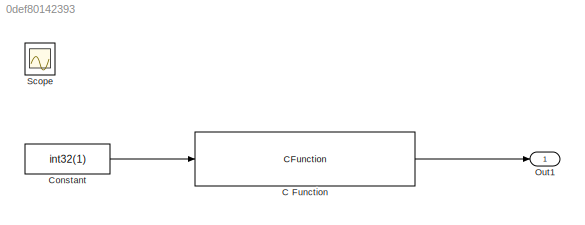
MODEL slx_0def80142393
KIND model
CONFIG AbsTol = auto
CONFIG EnableMultiTasking = off
CONFIG FixedStep = auto
CONFIG MaxStep = auto
CONFIG MinStep = auto
CONFIG RelTol = 1e-3
CONFIG SampleTimeConstraint = Unconstrained
CONFIG SolverName = VariableStepAuto
CONFIG StartTime = 0.0
CONFIG StopTime = 10.0
BLOCK [CFunction] C Function
  OutputCode = output = adderOutput(myAdder, increment);
  Ports = [1, 1]
  StartCode = myAdder =createAdder();
  TerminateCode = deleteAdder(myAdder);
BLOCK [Constant] Constant
  Value = int32(1)
BLOCK [Outport] Out1
BLOCK [Scope] Scope
  Floating = off
  IOType = viewer
  NumInputPorts = 1
  Ports = []
  ScopeSpecificationString = Simulink.scopes.TimeScopeBlockCfg('CurrentConfiguration', extmgr.ConfigurationSet(extmgr.Configuration('Core','General UI',true),extmgr.Configuration('Core','Source UI',true),extmgr.Configuration('Sources','WiredSimulink',true),extmgr.Configuration('Visuals','Time Domain',true,'SerializedDisplays',{struct('MinYLimReal','-11.625','MaxYLimReal','114.625','YLabelReal','','MinYLimMag','0.00000','MaxYL...<+1371ch>
LINE C Function:1 -> Out1:1
LINE Constant:1 -> C Function:1
